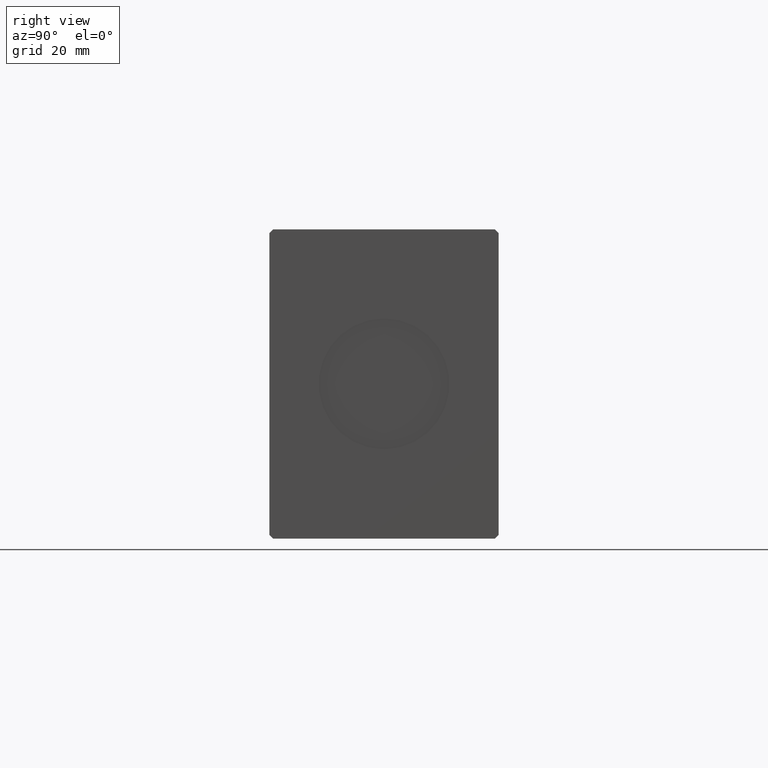
[diagram: clean part render]
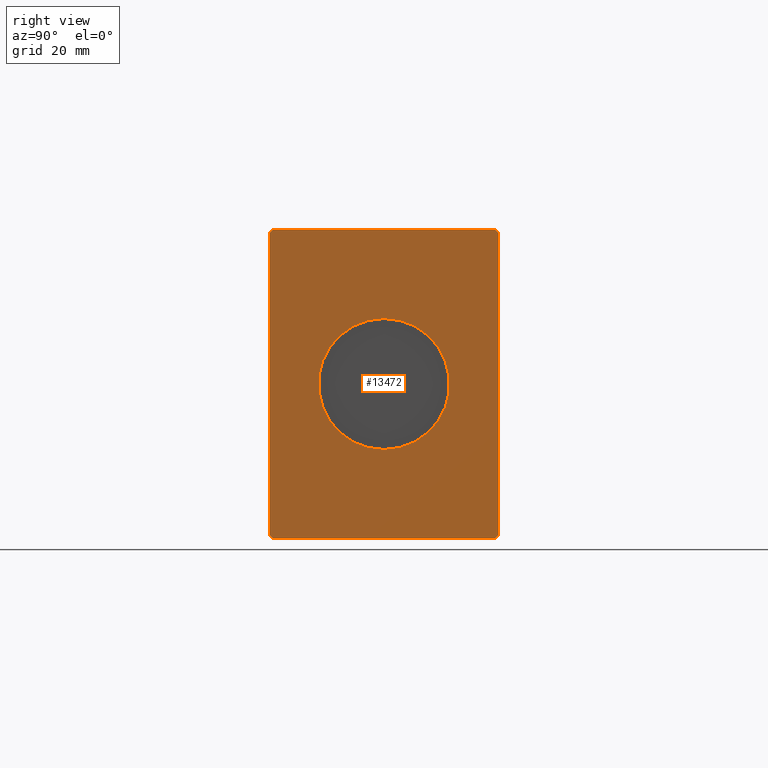
[diagram: same view with one face highlighted and labeled with its STEP entity id]
A machine part, right view. The second image highlights one B-rep face of the part: STEP entity #13472.
In plain terms, the highlighted planar face has unit normal (1, 0, 0).
Its self-contained STEP definition (entity closure, byte-faithful):
#259 = ORIENTED_EDGE ( 'NONE', *, *, #22844, .F. ) ;
#539 = PLANE ( 'NONE',  #31559 ) ;
#718 = LINE ( 'NONE', #9964, #19948 ) ;
#1287 = CARTESIAN_POINT ( 'NONE',  ( 171.0000000000000000, -31.50000000000000000, 41.49999999999999289 ) ) ;
#1362 = EDGE_CURVE ( 'NONE', #4394, #19418, #11580, .T. ) ;
#2354 = CARTESIAN_POINT ( 'NONE',  ( 171.0000000000000000, 2.204364238465235428E-15, 18.00000000000000000 ) ) ;
#3636 = VECTOR ( 'NONE', #33628, 1000.000000000000000 ) ;
#4097 = AXIS2_PLACEMENT_3D ( 'NONE', #28356, #12510, #12719 ) ;
#4140 = EDGE_LOOP ( 'NONE', ( #39978, #259 ) ) ;
#4394 = VERTEX_POINT ( 'NONE', #32667 ) ;
#4750 = CIRCLE ( 'NONE', #4097, 18.00000000000000000 ) ;
#4875 = EDGE_CURVE ( 'NONE', #7813, #28255, #718, .T. ) ;
#5328 = CARTESIAN_POINT ( 'NONE',  ( 171.0000000000000000, 30.50000000000001421, 42.49999999999999289 ) ) ;
#5902 = VERTEX_POINT ( 'NONE', #2354 ) ;
#6911 = CARTESIAN_POINT ( 'NONE',  ( 171.0000000000000000, 0.000000000000000000, 0.000000000000000000 ) ) ;
#7060 = VERTEX_POINT ( 'NONE', #31616 ) ;
#7769 = CARTESIAN_POINT ( 'NONE',  ( 171.0000000000000000, -31.50000000000000000, 41.49999999999999289 ) ) ;
#7813 = VERTEX_POINT ( 'NONE', #19142 ) ;
#8824 = CIRCLE ( 'NONE', #39013, 18.00000000000000000 ) ;
#8962 = VECTOR ( 'NONE', #30783, 999.9999999999998863 ) ;
#9103 = CARTESIAN_POINT ( 'NONE',  ( 171.0000000000000000, -30.50000000000000711, -42.50000000000000711 ) ) ;
#9478 = EDGE_CURVE ( 'NONE', #31792, #5902, #4750, .T. ) ;
#9639 = VECTOR ( 'NONE', #38411, 1000.000000000000000 ) ;
#9964 = CARTESIAN_POINT ( 'NONE',  ( 171.0000000000000000, 31.50000000000001421, 41.49999999999999289 ) ) ;
#10171 = CARTESIAN_POINT ( 'NONE',  ( 171.0000000000000000, 0.000000000000000000, 0.000000000000000000 ) ) ;
#10485 = CARTESIAN_POINT ( 'NONE',  ( 171.0000000000000000, -30.50000000000000355, 42.49999999999999289 ) ) ;
#10487 = LINE ( 'NONE', #13967, #33090 ) ;
#10557 = CARTESIAN_POINT ( 'NONE',  ( 171.0000000000000000, 31.50000000000001421, -41.50000000000000711 ) ) ;
#11580 = LINE ( 'NONE', #40162, #16828 ) ;
#12510 = DIRECTION ( 'NONE',  ( 1.000000000000000000, 0.000000000000000000, 0.000000000000000000 ) ) ;
#12719 = DIRECTION ( 'NONE',  ( 0.000000000000000000, 0.000000000000000000, -1.000000000000000000 ) ) ;
#13472 = ADVANCED_FACE ( 'NONE', ( #25817, #28708 ), #539, .T. ) ;
#13967 = CARTESIAN_POINT ( 'NONE',  ( 171.0000000000000000, 30.50000000000001421, 42.49999999999999289 ) ) ;
#14691 = VERTEX_POINT ( 'NONE', #9103 ) ;
#14932 = ORIENTED_EDGE ( 'NONE', *, *, #27381, .T. ) ;
#15219 = LINE ( 'NONE', #27761, #37137 ) ;
#15936 = DIRECTION ( 'NONE',  ( 1.000000000000000000, 0.000000000000000000, 0.000000000000000000 ) ) ;
#16828 = VECTOR ( 'NONE', #27207, 999.9999999999998863 ) ;
#17854 = CARTESIAN_POINT ( 'NONE',  ( 171.0000000000000000, 31.50000000000001421, -41.50000000000000711 ) ) ;
#18482 = DIRECTION ( 'NONE',  ( 0.000000000000000000, 0.000000000000000000, -1.000000000000000000 ) ) ;
#19142 = CARTESIAN_POINT ( 'NONE',  ( 171.0000000000000000, 31.50000000000001421, 41.49999999999999289 ) ) ;
#19418 = VERTEX_POINT ( 'NONE', #10557 ) ;
#19948 = VECTOR ( 'NONE', #37723, 1000.000000000000114 ) ;
#20165 = DIRECTION ( 'NONE',  ( 0.000000000000000000, -1.000000000000000000, 0.000000000000000000 ) ) ;
#20892 = LINE ( 'NONE', #32811, #3636 ) ;
#21120 = EDGE_CURVE ( 'NONE', #28255, #28900, #10487, .T. ) ;
#21326 = CARTESIAN_POINT ( 'NONE',  ( 171.0000000000000000, -30.50000000000000355, 42.49999999999999289 ) ) ;
#22375 = ORIENTED_EDGE ( 'NONE', *, *, #1362, .T. ) ;
#22709 = DIRECTION ( 'NONE',  ( 0.000000000000000000, 0.000000000000000000, -1.000000000000000000 ) ) ;
#22844 = EDGE_CURVE ( 'NONE', #5902, #31792, #8824, .T. ) ;
#25189 = ORIENTED_EDGE ( 'NONE', *, *, #25894, .T. ) ;
#25817 = FACE_BOUND ( 'NONE', #4140, .T. ) ;
#25876 = LINE ( 'NONE', #7769, #9639 ) ;
#25894 = EDGE_CURVE ( 'NONE', #14691, #4394, #20892, .T. ) ;
#27207 = DIRECTION ( 'NONE',  ( 0.000000000000000000, 0.7071067811865462405, 0.7071067811865489050 ) ) ;
#27381 = EDGE_CURVE ( 'NONE', #7060, #14691, #15219, .T. ) ;
#27761 = CARTESIAN_POINT ( 'NONE',  ( 171.0000000000000000, -31.50000000000000000, -41.50000000000000711 ) ) ;
#28255 = VERTEX_POINT ( 'NONE', #5328 ) ;
#28356 = CARTESIAN_POINT ( 'NONE',  ( 171.0000000000000000, 0.000000000000000000, 0.000000000000000000 ) ) ;
#28600 = VERTEX_POINT ( 'NONE', #1287 ) ;
#28708 = FACE_OUTER_BOUND ( 'NONE', #32842, .T. ) ;
#28752 = ORIENTED_EDGE ( 'NONE', *, *, #38337, .T. ) ;
#28900 = VERTEX_POINT ( 'NONE', #10485 ) ;
#30284 = EDGE_CURVE ( 'NONE', #28900, #28600, #30376, .T. ) ;
#30376 = LINE ( 'NONE', #21326, #8962 ) ;
#30681 = ORIENTED_EDGE ( 'NONE', *, *, #30808, .T. ) ;
#30783 = DIRECTION ( 'NONE',  ( 0.000000000000000000, -0.7071067811865462405, -0.7071067811865489050 ) ) ;
#30808 = EDGE_CURVE ( 'NONE', #28600, #7060, #25876, .T. ) ;
#31083 = ORIENTED_EDGE ( 'NONE', *, *, #30284, .T. ) ;
#31559 = AXIS2_PLACEMENT_3D ( 'NONE', #6911, #38350, #18482 ) ;
#31616 = CARTESIAN_POINT ( 'NONE',  ( 171.0000000000000000, -31.50000000000000000, -41.50000000000000711 ) ) ;
#31792 = VERTEX_POINT ( 'NONE', #38564 ) ;
#31974 = ORIENTED_EDGE ( 'NONE', *, *, #4875, .T. ) ;
#32667 = CARTESIAN_POINT ( 'NONE',  ( 171.0000000000000000, 30.50000000000001776, -42.50000000000000711 ) ) ;
#32811 = CARTESIAN_POINT ( 'NONE',  ( 171.0000000000000000, -30.50000000000000711, -42.50000000000000711 ) ) ;
#32842 = EDGE_LOOP ( 'NONE', ( #31974, #36847, #31083, #30681, #14932, #25189, #22375, #28752 ) ) ;
#33090 = VECTOR ( 'NONE', #20165, 1000.000000000000000 ) ;
#33628 = DIRECTION ( 'NONE',  ( 0.000000000000000000, 1.000000000000000000, 0.000000000000000000 ) ) ;
#34133 = DIRECTION ( 'NONE',  ( 0.000000000000000000, 0.7071067811865451302, -0.7071067811865500152 ) ) ;
#36561 = LINE ( 'NONE', #17854, #36638 ) ;
#36638 = VECTOR ( 'NONE', #37169, 1000.000000000000000 ) ;
#36847 = ORIENTED_EDGE ( 'NONE', *, *, #21120, .T. ) ;
#37137 = VECTOR ( 'NONE', #34133, 1000.000000000000114 ) ;
#37169 = DIRECTION ( 'NONE',  ( 0.000000000000000000, 0.000000000000000000, 1.000000000000000000 ) ) ;
#37723 = DIRECTION ( 'NONE',  ( 0.000000000000000000, -0.7071067811865474617, 0.7071067811865474617 ) ) ;
#38337 = EDGE_CURVE ( 'NONE', #19418, #7813, #36561, .T. ) ;
#38350 = DIRECTION ( 'NONE',  ( 1.000000000000000000, 0.000000000000000000, 0.000000000000000000 ) ) ;
#38411 = DIRECTION ( 'NONE',  ( 0.000000000000000000, 0.000000000000000000, -1.000000000000000000 ) ) ;
#38564 = CARTESIAN_POINT ( 'NONE',  ( 171.0000000000000000, 0.000000000000000000, -18.00000000000000000 ) ) ;
#39013 = AXIS2_PLACEMENT_3D ( 'NONE', #10171, #15936, #22709 ) ;
#39978 = ORIENTED_EDGE ( 'NONE', *, *, #9478, .F. ) ;
#40162 = CARTESIAN_POINT ( 'NONE',  ( 171.0000000000000000, 30.50000000000001776, -42.50000000000000711 ) ) ;